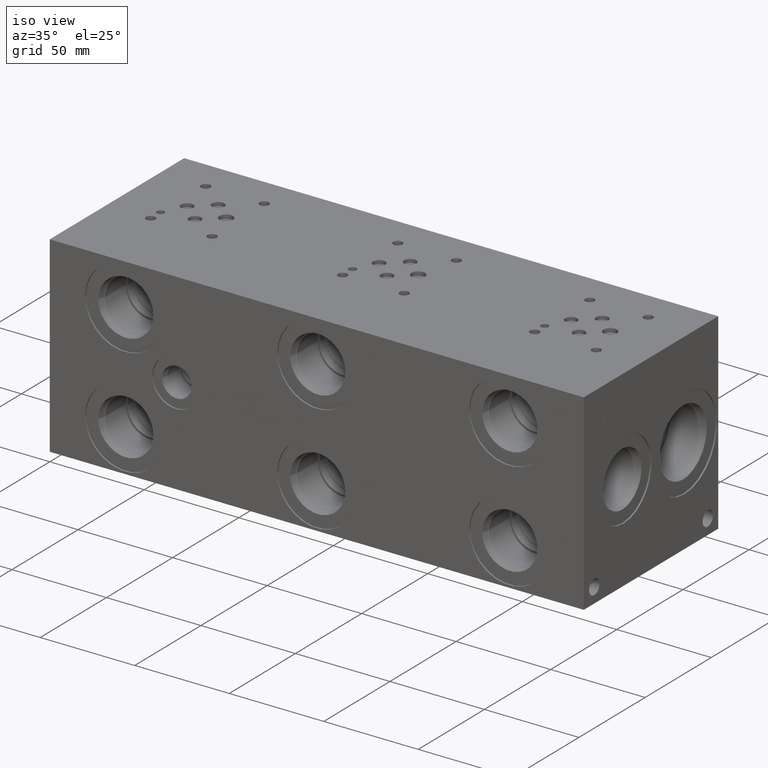
[diagram: clean part render]
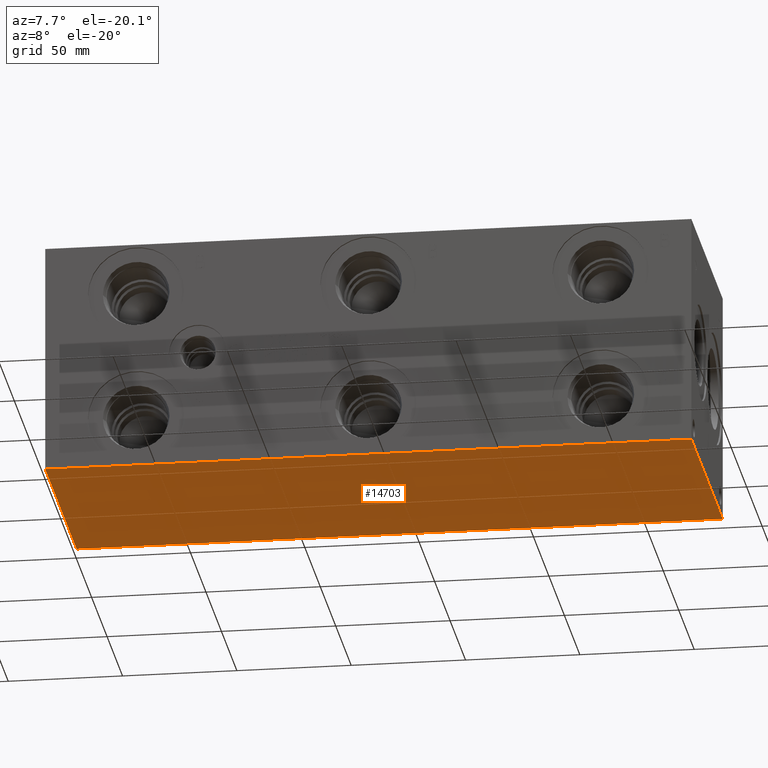
[diagram: tour spotlight — one face highlighted and labeled with its STEP entity id]
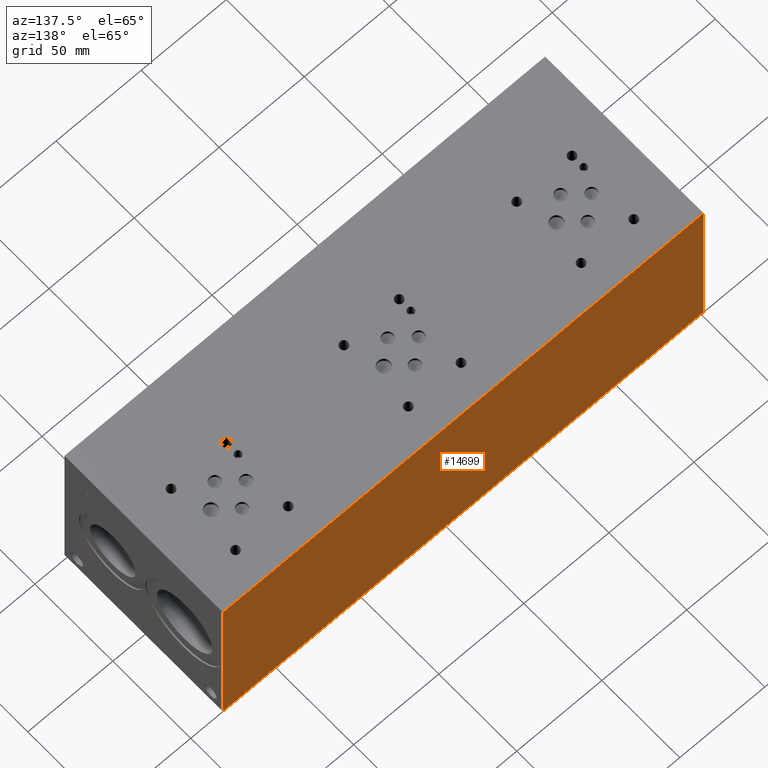
[diagram: tour spotlight — one face highlighted and labeled with its STEP entity id]
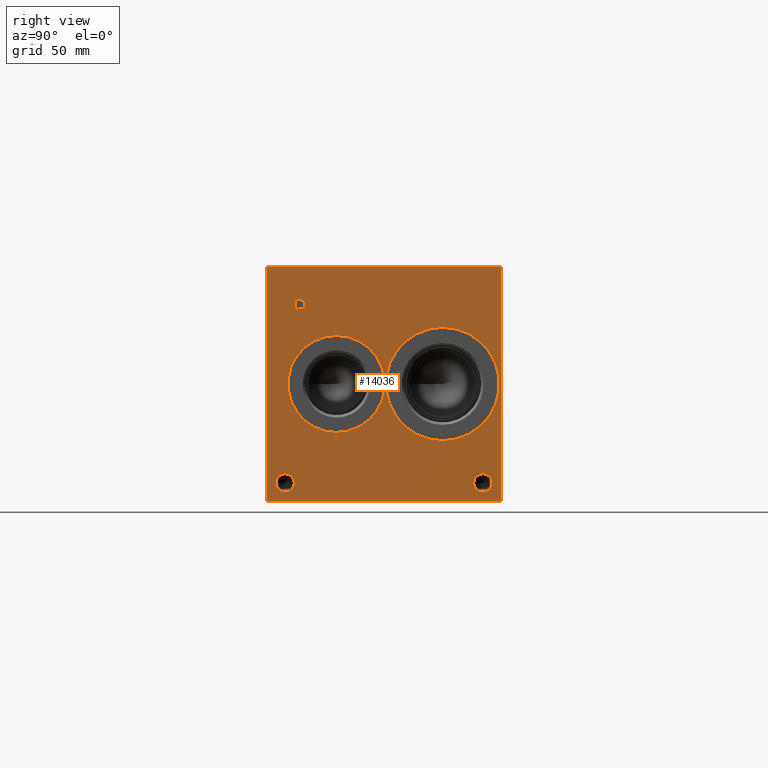
[diagram: tour spotlight — one face highlighted and labeled with its STEP entity id]
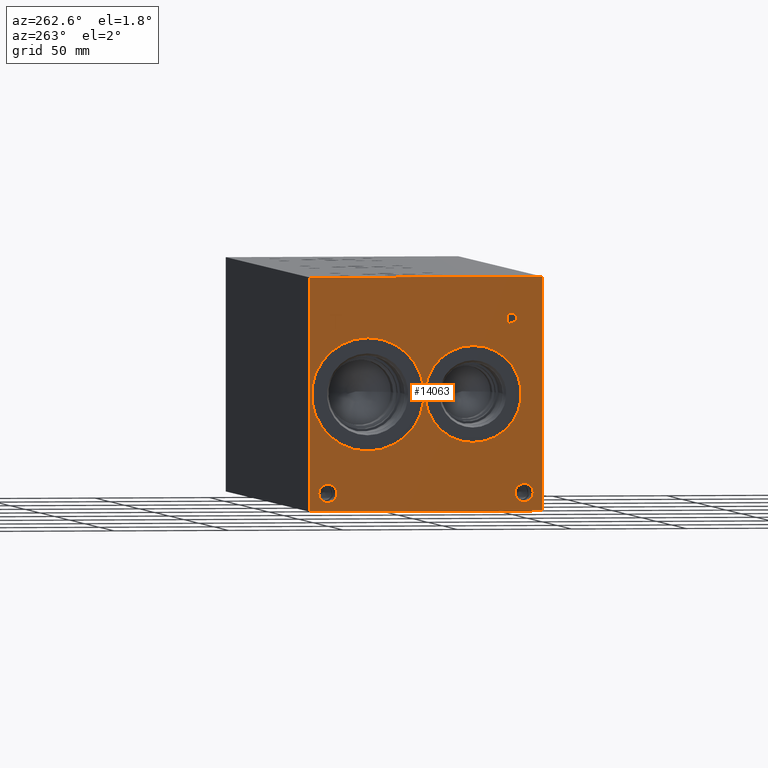
[diagram: tour spotlight — one face highlighted and labeled with its STEP entity id]
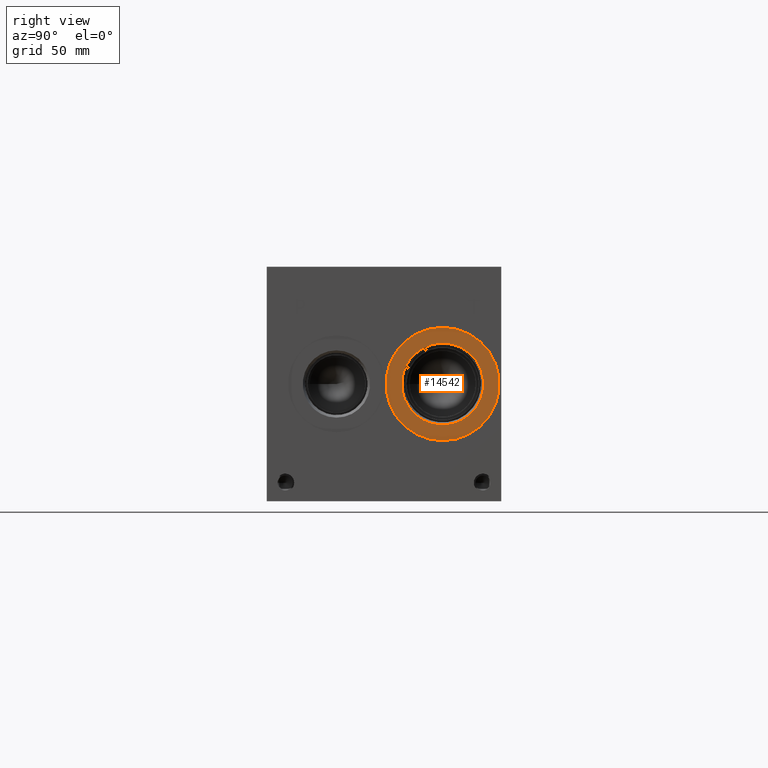
[diagram: tour spotlight — one face highlighted and labeled with its STEP entity id]
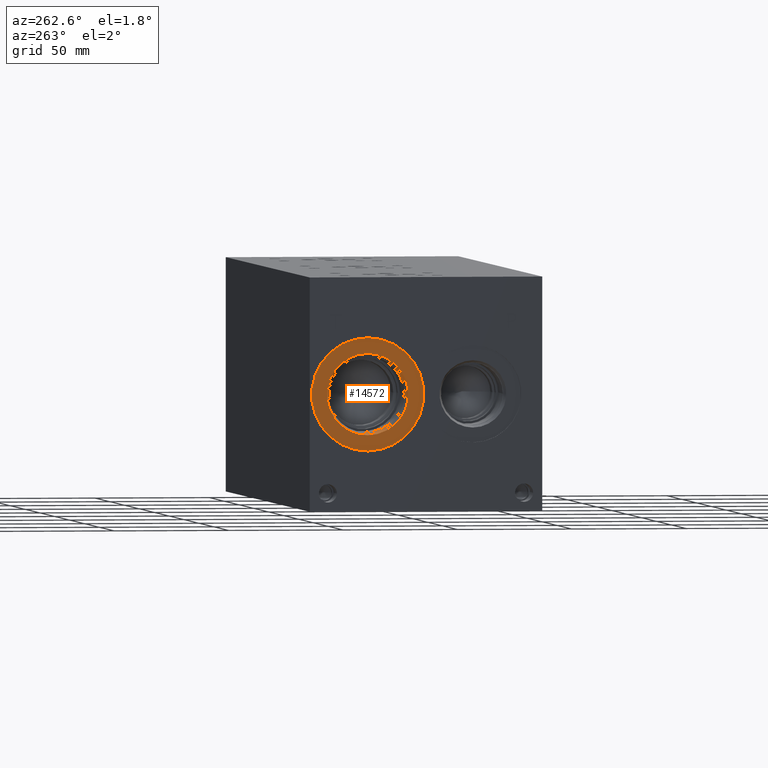
[diagram: tour spotlight — one face highlighted and labeled with its STEP entity id]
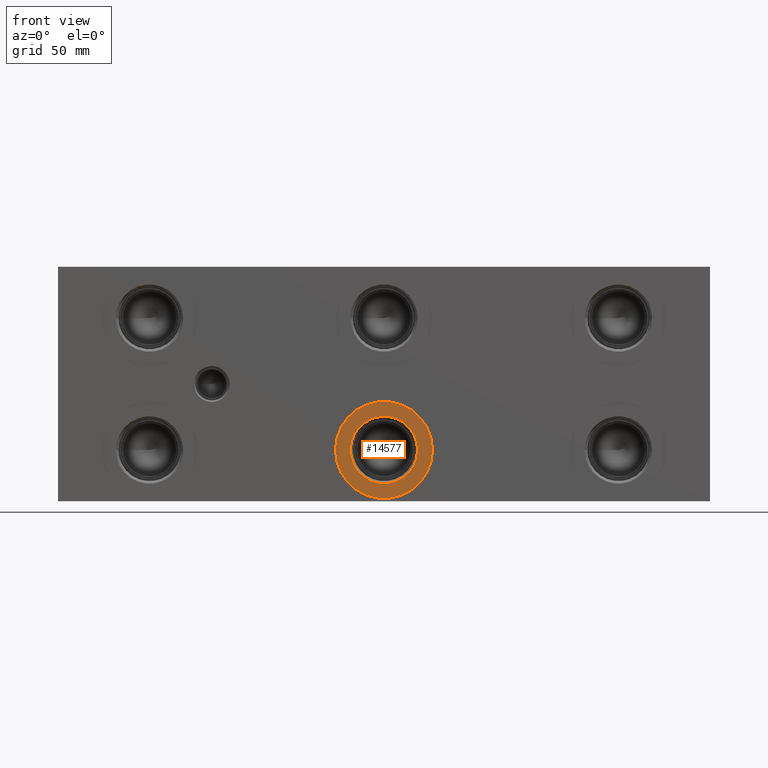
[diagram: tour spotlight — one face highlighted and labeled with its STEP entity id]
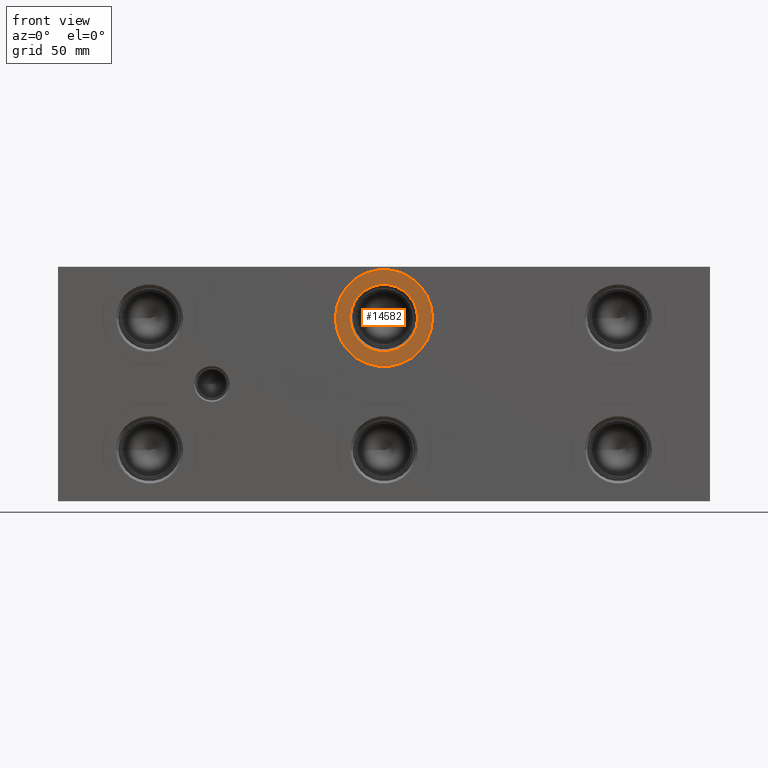
[diagram: tour spotlight — one face highlighted and labeled with its STEP entity id]
A machine part: a face-by-face anatomy tour. The part has 760 B-rep faces; the first image is the clean iso view, then the 8 largest visible faces are spotlighted one at a time (largest first), each with its STEP entity span.

Face 1 — auxiliary view, entity #14703. In plain terms, the highlighted planar face has unit normal (0, 0, 1).
Definition (entity closure, byte-faithful):
#1988=FACE_OUTER_BOUND('',#2879,.T.);
#2879=EDGE_LOOP('',(#13011,#13012,#13013,#13014));
#2913=LINE('',#19009,#4218);
#3268=LINE('',#20796,#4573);
#3327=LINE('',#21068,#4632);
#4183=LINE('',#25404,#5488);
#4218=VECTOR('',#15750,10.);
#4573=VECTOR('',#16221,10.);
#4632=VECTOR('',#16334,10.);
#5488=VECTOR('',#18928,10.);
#5512=VERTEX_POINT('',#19007);
#5513=VERTEX_POINT('',#19008);
#5967=VERTEX_POINT('',#20795);
#6025=VERTEX_POINT('',#21067);
#6934=EDGE_CURVE('',#5512,#5513,#2913,.T.);
#7461=EDGE_CURVE('',#5513,#5967,#3268,.T.);
#7544=EDGE_CURVE('',#6025,#5512,#3327,.T.);
#8937=EDGE_CURVE('',#5967,#6025,#4183,.T.);
#13011=ORIENTED_EDGE('',*,*,#6934,.F.);
#13012=ORIENTED_EDGE('',*,*,#7544,.F.);
#13013=ORIENTED_EDGE('',*,*,#8937,.F.);
#13014=ORIENTED_EDGE('',*,*,#7461,.F.);
#13423=PLANE('',#15688);
#14703=ADVANCED_FACE('',(#1988),#13423,.F.);
#15688=AXIS2_PLACEMENT_3D('',#25409,#18936,#18937);
#15750=DIRECTION('',(1.,0.,0.));
#16221=DIRECTION('',(0.,1.,0.));
#16334=DIRECTION('',(0.,-1.,0.));
#18928=DIRECTION('',(-1.,0.,0.));
#18936=DIRECTION('center_axis',(0.,0.,1.));
#18937=DIRECTION('ref_axis',(1.,0.,0.));
#19007=CARTESIAN_POINT('',(0.,0.,0.));
#19008=CARTESIAN_POINT('',(282.575,0.,0.));
#19009=CARTESIAN_POINT('',(0.,0.,0.));
#20795=CARTESIAN_POINT('',(282.575,101.6,0.));
#20796=CARTESIAN_POINT('',(282.575,0.,0.));
#21067=CARTESIAN_POINT('',(0.,101.6,0.));
#21068=CARTESIAN_POINT('',(0.,101.6,0.));
#25404=CARTESIAN_POINT('',(282.575,101.6,0.));
#25409=CARTESIAN_POINT('Origin',(141.2875,50.8,0.));

Face 2 — auxiliary view, entity #14699. In plain terms, the highlighted planar face has unit normal (0, 1, 0).
Definition (entity closure, byte-faithful):
#1984=FACE_OUTER_BOUND('',#2848,.T.);
#2848=EDGE_LOOP('',(#12935,#12936,#12937,#12938));
#3269=LINE('',#20798,#4574);
#3329=LINE('',#21071,#4634);
#4183=LINE('',#25404,#5488);
#4184=LINE('',#25405,#5489);
#4574=VECTOR('',#16222,10.);
#4634=VECTOR('',#16336,10.);
#5488=VECTOR('',#18928,10.);
#5489=VECTOR('',#18929,10.);
#5967=VERTEX_POINT('',#20795);
#5968=VERTEX_POINT('',#20797);
#6025=VERTEX_POINT('',#21067);
#6026=VERTEX_POINT('',#21069);
#7462=EDGE_CURVE('',#5967,#5968,#3269,.T.);
#7546=EDGE_CURVE('',#6025,#6026,#3329,.T.);
#8937=EDGE_CURVE('',#5967,#6025,#4183,.T.);
#8938=EDGE_CURVE('',#5968,#6026,#4184,.T.);
#12935=ORIENTED_EDGE('',*,*,#8937,.T.);
#12936=ORIENTED_EDGE('',*,*,#7546,.T.);
#12937=ORIENTED_EDGE('',*,*,#8938,.F.);
#12938=ORIENTED_EDGE('',*,*,#7462,.F.);
#13419=PLANE('',#15684);
#14699=ADVANCED_FACE('',(#1984),#13419,.T.);
#15684=AXIS2_PLACEMENT_3D('',#25403,#18926,#18927);
#16222=DIRECTION('',(0.,0.,1.));
#16336=DIRECTION('',(0.,0.,1.));
#18926=DIRECTION('center_axis',(0.,1.,0.));
#18927=DIRECTION('ref_axis',(-1.,0.,0.));
#18928=DIRECTION('',(-1.,0.,0.));
#18929=DIRECTION('',(-1.,0.,0.));
#20795=CARTESIAN_POINT('',(282.575,101.6,0.));
#20797=CARTESIAN_POINT('',(282.575,101.6,101.6));
#20798=CARTESIAN_POINT('',(282.575,101.6,0.));
#21067=CARTESIAN_POINT('',(0.,101.6,0.));
#21069=CARTESIAN_POINT('',(0.,101.6,101.6));
#21071=CARTESIAN_POINT('',(0.,101.6,0.));
#25403=CARTESIAN_POINT('Origin',(282.575,101.6,0.));
#25404=CARTESIAN_POINT('',(282.575,101.6,0.));
#25405=CARTESIAN_POINT('',(282.575,101.6,101.6));

Face 3 — right view, entity #14036. In plain terms, the highlighted planar face has unit normal (1, 0, 0).
Definition (entity closure, byte-faithful):
#379=CIRCLE('',#14789,24.5618);
#380=CIRCLE('',#14790,24.5618);
#381=CIRCLE('',#14791,21.0185);
#382=CIRCLE('',#14792,21.0185);
#383=CIRCLE('',#14793,3.9624);
#384=CIRCLE('',#14794,3.9624);
#385=CIRCLE('',#14795,3.9624);
#386=CIRCLE('',#14796,3.9624);
#900=B_SPLINE_CURVE_WITH_KNOTS('',2,(#20697,#20698,#20699,#20700),
 .UNSPECIFIED.,.F.,.F.,(3,1,3),(0.,1.,2.),.UNSPECIFIED.);
#902=B_SPLINE_CURVE_WITH_KNOTS('',2,(#20718,#20719,#20720,#20721),
 .UNSPECIFIED.,.F.,.F.,(3,1,3),(0.,1.,2.),.UNSPECIFIED.);
#904=B_SPLINE_CURVE_WITH_KNOTS('',2,(#20767,#20768,#20769,#20770),
 .UNSPECIFIED.,.F.,.F.,(3,1,3),(0.,1.,2.),.UNSPECIFIED.);
#906=B_SPLINE_CURVE_WITH_KNOTS('',2,(#20785,#20786,#20787,#20788),
 .UNSPECIFIED.,.F.,.F.,(3,1,3),(0.,1.,2.),.UNSPECIFIED.);
#1137=FACE_BOUND('',#2121,.T.);
#1138=FACE_BOUND('',#2122,.T.);
#1139=FACE_BOUND('',#2123,.T.);
#1140=FACE_BOUND('',#2124,.T.);
#1141=FACE_BOUND('',#2125,.T.);
#1142=FACE_BOUND('',#2126,.T.);
#1321=FACE_OUTER_BOUND('',#2120,.T.);
#2120=EDGE_LOOP('',(#9729,#9730,#9731,#9732));
#2121=EDGE_LOOP('',(#9733,#9734));
#2122=EDGE_LOOP('',(#9735,#9736));
#2123=EDGE_LOOP('',(#9737,#9738));
#2124=EDGE_LOOP('',(#9739,#9740));
#2125=EDGE_LOOP('',(#9741,#9742,#9743,#9744,#9745,#9746,#9747,#9748));
#2126=EDGE_LOOP('',(#9749,#9750,#9751,#9752,#9753,#9754,#9755,#9756,#9757));
#2914=LINE('',#19011,#4219);
#3252=LINE('',#20730,#4557);
#3255=LINE('',#20736,#4560);
#3258=LINE('',#20742,#4563);
#3261=LINE('',#20748,#4566);
#3264=LINE('',#20754,#4569);
#3268=LINE('',#20796,#4573);
#3269=LINE('',#20798,#4574);
#3270=LINE('',#20799,#4575);
#3271=LINE('',#20818,#4576);
#3272=LINE('',#20820,#4577);
#3273=LINE('',#20822,#4578);
#3274=LINE('',#20824,#4579);
#3275=LINE('',#20826,#4580);
#3276=LINE('',#20828,#4581);
#3277=LINE('',#20830,#4582);
#3278=LINE('',#20831,#4583);
#4219=VECTOR('',#15751,10.);
#4557=VECTOR('',#16193,10.);
#4560=VECTOR('',#16198,10.);
#4563=VECTOR('',#16203,10.);
#4566=VECTOR('',#16208,10.);
#4569=VECTOR('',#16213,10.);
#4573=VECTOR('',#16221,10.);
#4574=VECTOR('',#16222,10.);
#4575=VECTOR('',#16223,10.);
#4576=VECTOR('',#16240,10.);
#4577=VECTOR('',#16241,10.);
#4578=VECTOR('',#16242,10.);
#4579=VECTOR('',#16243,10.);
#4580=VECTOR('',#16244,10.);
#4581=VECTOR('',#16245,10.);
#4582=VECTOR('',#16246,10.);
#4583=VECTOR('',#16247,10.);
#5513=VERTEX_POINT('',#19008);
#5514=VERTEX_POINT('',#19010);
#5949=VERTEX_POINT('',#20695);
#5950=VERTEX_POINT('',#20696);
#5953=VERTEX_POINT('',#20717);
#5955=VERTEX_POINT('',#20729);
#5957=VERTEX_POINT('',#20735);
#5959=VERTEX_POINT('',#20741);
#5961=VERTEX_POINT('',#20747);
#5963=VERTEX_POINT('',#20753);
#5965=VERTEX_POINT('',#20766);
#5967=VERTEX_POINT('',#20795);
#5968=VERTEX_POINT('',#20797);
#5969=VERTEX_POINT('',#20800);
#5970=VERTEX_POINT('',#20801);
#5971=VERTEX_POINT('',#20804);
#5972=VERTEX_POINT('',#20805);
#5973=VERTEX_POINT('',#20808);
#5974=VERTEX_POINT('',#20809);
#5975=VERTEX_POINT('',#20812);
#5976=VERTEX_POINT('',#20813);
#5977=VERTEX_POINT('',#20816);
#5978=VERTEX_POINT('',#20817);
#5979=VERTEX_POINT('',#20819);
#5980=VERTEX_POINT('',#20821);
#5981=VERTEX_POINT('',#20823);
#5982=VERTEX_POINT('',#20825);
#5983=VERTEX_POINT('',#20827);
#5984=VERTEX_POINT('',#20829);
#6935=EDGE_CURVE('',#5513,#5514,#2914,.T.);
#7434=EDGE_CURVE('',#5949,#5950,#900,.T.);
#7438=EDGE_CURVE('',#5953,#5949,#902,.T.);
#7441=EDGE_CURVE('',#5955,#5953,#3252,.T.);
#7444=EDGE_CURVE('',#5957,#5955,#3255,.T.);
#7447=EDGE_CURVE('',#5959,#5957,#3258,.T.);
#7450=EDGE_CURVE('',#5961,#5959,#3261,.T.);
#7453=EDGE_CURVE('',#5963,#5961,#3264,.T.);
#7456=EDGE_CURVE('',#5965,#5963,#904,.T.);
#7459=EDGE_CURVE('',#5950,#5965,#906,.T.);
#7461=EDGE_CURVE('',#5513,#5967,#3268,.T.);
#7462=EDGE_CURVE('',#5967,#5968,#3269,.T.);
#7463=EDGE_CURVE('',#5514,#5968,#3270,.T.);
#7464=EDGE_CURVE('',#5969,#5970,#379,.T.);
#7465=EDGE_CURVE('',#5970,#5969,#380,.T.);
#7466=EDGE_CURVE('',#5971,#5972,#381,.T.);
#7467=EDGE_CURVE('',#5972,#5971,#382,.T.);
#7468=EDGE_CURVE('',#5973,#5974,#383,.T.);
#7469=EDGE_CURVE('',#5974,#5973,#384,.T.);
#7470=EDGE_CURVE('',#5975,#5976,#385,.T.);
#7471=EDGE_CURVE('',#5976,#5975,#386,.T.);
#7472=EDGE_CURVE('',#5977,#5978,#3271,.T.);
#7473=EDGE_CURVE('',#5978,#5979,#3272,.T.);
#7474=EDGE_CURVE('',#5979,#5980,#3273,.T.);
#7475=EDGE_CURVE('',#5980,#5981,#3274,.T.);
#7476=EDGE_CURVE('',#5981,#5982,#3275,.T.);
#7477=EDGE_CURVE('',#5982,#5983,#3276,.T.);
#7478=EDGE_CURVE('',#5983,#5984,#3277,.T.);
#7479=EDGE_CURVE('',#5984,#5977,#3278,.T.);
#9729=ORIENTED_EDGE('',*,*,#7461,.T.);
#9730=ORIENTED_EDGE('',*,*,#7462,.T.);
#9731=ORIENTED_EDGE('',*,*,#7463,.F.);
#9732=ORIENTED_EDGE('',*,*,#6935,.F.);
#9733=ORIENTED_EDGE('',*,*,#7464,.T.);
#9734=ORIENTED_EDGE('',*,*,#7465,.T.);
#9735=ORIENTED_EDGE('',*,*,#7466,.T.);
#9736=ORIENTED_EDGE('',*,*,#7467,.T.);
#9737=ORIENTED_EDGE('',*,*,#7468,.T.);
#9738=ORIENTED_EDGE('',*,*,#7469,.T.);
#9739=ORIENTED_EDGE('',*,*,#7470,.T.);
#9740=ORIENTED_EDGE('',*,*,#7471,.T.);
#9741=ORIENTED_EDGE('',*,*,#7472,.T.);
#9742=ORIENTED_EDGE('',*,*,#7473,.T.);
#9743=ORIENTED_EDGE('',*,*,#7474,.T.);
#9744=ORIENTED_EDGE('',*,*,#7475,.T.);
#9745=ORIENTED_EDGE('',*,*,#7476,.T.);
#9746=ORIENTED_EDGE('',*,*,#7477,.T.);
#9747=ORIENTED_EDGE('',*,*,#7478,.T.);
#9748=ORIENTED_EDGE('',*,*,#7479,.T.);
#9749=ORIENTED_EDGE('',*,*,#7434,.T.);
#9750=ORIENTED_EDGE('',*,*,#7459,.T.);
#9751=ORIENTED_EDGE('',*,*,#7456,.T.);
#9752=ORIENTED_EDGE('',*,*,#7453,.T.);
#9753=ORIENTED_EDGE('',*,*,#7450,.T.);
#9754=ORIENTED_EDGE('',*,*,#7447,.T.);
#9755=ORIENTED_EDGE('',*,*,#7444,.T.);
#9756=ORIENTED_EDGE('',*,*,#7441,.T.);
#9757=ORIENTED_EDGE('',*,*,#7438,.T.);
#13071=PLANE('',#14788);
#14036=ADVANCED_FACE('',(#1321,#1137,#1138,#1139,#1140,#1141,#1142),#13071,
 .T.);
#14788=AXIS2_PLACEMENT_3D('',#20794,#16219,#16220);
#14789=AXIS2_PLACEMENT_3D('',#20802,#16224,#16225);
#14790=AXIS2_PLACEMENT_3D('',#20803,#16226,#16227);
#14791=AXIS2_PLACEMENT_3D('',#20806,#16228,#16229);
#14792=AXIS2_PLACEMENT_3D('',#20807,#16230,#16231);
#14793=AXIS2_PLACEMENT_3D('',#20810,#16232,#16233);
#14794=AXIS2_PLACEMENT_3D('',#20811,#16234,#16235);
#14795=AXIS2_PLACEMENT_3D('',#20814,#16236,#16237);
#14796=AXIS2_PLACEMENT_3D('',#20815,#16238,#16239);
#15751=DIRECTION('',(0.,0.,1.));
#16193=DIRECTION('',(0.,1.,0.));
#16198=DIRECTION('',(0.,0.,1.));
#16203=DIRECTION('',(0.,-1.,0.));
#16208=DIRECTION('',(0.,0.,-1.));
#16213=DIRECTION('',(0.,-1.,0.));
#16219=DIRECTION('center_axis',(1.,0.,0.));
#16220=DIRECTION('ref_axis',(0.,1.,0.));
#16221=DIRECTION('',(0.,1.,0.));
#16222=DIRECTION('',(0.,0.,1.));
#16223=DIRECTION('',(0.,1.,0.));
#16224=DIRECTION('center_axis',(-1.,0.,0.));
#16225=DIRECTION('ref_axis',(0.,0.,-1.));
#16226=DIRECTION('center_axis',(-1.,0.,0.));
#16227=DIRECTION('ref_axis',(0.,0.,-1.));
#16228=DIRECTION('center_axis',(-1.,0.,0.));
#16229=DIRECTION('ref_axis',(0.,0.,-1.));
#16230=DIRECTION('center_axis',(-1.,0.,0.));
#16231=DIRECTION('ref_axis',(0.,0.,-1.));
#16232=DIRECTION('center_axis',(-1.,0.,0.));
#16233=DIRECTION('ref_axis',(0.,1.,0.));
#16234=DIRECTION('center_axis',(-1.,0.,0.));
#16235=DIRECTION('ref_axis',(0.,1.,0.));
#16236=DIRECTION('center_axis',(-1.,0.,0.));
#16237=DIRECTION('ref_axis',(0.,1.,0.));
#16238=DIRECTION('center_axis',(-1.,0.,0.));
#16239=DIRECTION('ref_axis',(0.,1.,0.));
#16240=DIRECTION('',(0.,-1.,0.));
#16241=DIRECTION('',(0.,0.,1.));
#16242=DIRECTION('',(0.,-1.,0.));
#16243=DIRECTION('',(0.,0.,1.));
#16244=DIRECTION('',(0.,1.,0.));
#16245=DIRECTION('',(0.,0.,-1.));
#16246=DIRECTION('',(0.,-1.,0.));
#16247=DIRECTION('',(0.,0.,-1.));
#19008=CARTESIAN_POINT('',(282.575,0.,0.));
#19010=CARTESIAN_POINT('',(282.575,0.,101.6));
#19011=CARTESIAN_POINT('',(282.575,0.,0.));
#20695=CARTESIAN_POINT('',(282.575,15.8068172023594,86.9162681439707));
#20696=CARTESIAN_POINT('',(282.575,16.563259654532,85.398237372604));
#20697=CARTESIAN_POINT('Ctrl Pts',(282.575,15.8068172023594,86.9162681439707));
#20698=CARTESIAN_POINT('Ctrl Pts',(282.575,16.1618820268486,86.6744123939564));
#20699=CARTESIAN_POINT('Ctrl Pts',(282.575,16.563259654532,85.9282616758269));
#20700=CARTESIAN_POINT('Ctrl Pts',(282.575,16.563259654532,85.398237372604));
#20717=CARTESIAN_POINT('',(282.575,14.1447021543883,87.3124999046326));
#20718=CARTESIAN_POINT('Ctrl Pts',(282.575,14.1447021543883,87.3124999046326));
#20719=CARTESIAN_POINT('Ctrl Pts',(282.575,14.7107475267624,87.3124999046326));
#20720=CARTESIAN_POINT('Ctrl Pts',(282.575,15.503211048086,87.1272486918556));
#20721=CARTESIAN_POINT('Ctrl Pts',(282.575,15.8068172023594,86.9162681439707));
#20729=CARTESIAN_POINT('',(282.575,12.5494833776978,87.3124999046326));
#20730=CARTESIAN_POINT('',(282.575,6.27474168884889,87.3124999046326));
#20735=CARTESIAN_POINT('',(282.575,12.5494833776978,80.9625));
#20736=CARTESIAN_POINT('',(282.575,12.5494833776978,40.48125));
#20741=CARTESIAN_POINT('',(282.575,13.3934055692373,80.9625));
#20742=CARTESIAN_POINT('',(282.575,6.69670278461864,80.9625));
#20747=CARTESIAN_POINT('',(282.575,13.3934055692373,83.3295988299279));
#20748=CARTESIAN_POINT('',(282.575,13.3934055692373,41.6647994149639));
#20753=CARTESIAN_POINT('',(282.575,14.1086810852372,83.3295988299279));
#20754=CARTESIAN_POINT('',(282.575,7.05434054261861,83.3295988299279));
#20766=CARTESIAN_POINT('',(282.575,16.0075060162011,83.9882698086904));
#20767=CARTESIAN_POINT('Ctrl Pts',(282.575,16.0075060162011,83.9882698086904));
#20768=CARTESIAN_POINT('Ctrl Pts',(282.575,15.6781705268198,83.6640801863307));
#20769=CARTESIAN_POINT('Ctrl Pts',(282.575,14.7879355320861,83.3295988299279));
#20770=CARTESIAN_POINT('Ctrl Pts',(282.575,14.1086810852372,83.3295988299279));
#20785=CARTESIAN_POINT('Ctrl Pts',(282.575,16.563259654532,85.398237372604));
#20786=CARTESIAN_POINT('Ctrl Pts',(282.575,16.563259654532,84.9865680108774));
#20787=CARTESIAN_POINT('Ctrl Pts',(282.575,16.2699452343018,84.2455631597695));
#20788=CARTESIAN_POINT('Ctrl Pts',(282.575,16.0075060162011,83.9882698086904));
#20794=CARTESIAN_POINT('Origin',(282.575,0.,0.));
#20795=CARTESIAN_POINT('',(282.575,101.6,0.));
#20796=CARTESIAN_POINT('',(282.575,0.,0.));
#20797=CARTESIAN_POINT('',(282.575,101.6,101.6));
#20798=CARTESIAN_POINT('',(282.575,101.6,0.));
#20799=CARTESIAN_POINT('',(282.575,0.,101.6));
#20800=CARTESIAN_POINT('',(282.575,76.2,26.2382));
#20801=CARTESIAN_POINT('',(282.575,76.2,75.3618));
#20802=CARTESIAN_POINT('Origin',(282.575,76.2,50.8));
#20803=CARTESIAN_POINT('Origin',(282.575,76.2,50.8));
#20804=CARTESIAN_POINT('',(282.575,30.1752,29.7815));
#20805=CARTESIAN_POINT('',(282.575,30.1752,71.8185));
#20806=CARTESIAN_POINT('Origin',(282.575,30.1752,50.8));
#20807=CARTESIAN_POINT('Origin',(282.575,30.1752,50.8));
#20808=CARTESIAN_POINT('',(282.575,11.8872,7.9248));
#20809=CARTESIAN_POINT('',(282.575,3.9624,7.9248));
#20810=CARTESIAN_POINT('Origin',(282.575,7.9248,7.9248));
#20811=CARTESIAN_POINT('Origin',(282.575,7.9248,7.9248));
#20812=CARTESIAN_POINT('',(282.575,97.6376,7.9248));
#20813=CARTESIAN_POINT('',(282.575,89.7128,7.9248));
#20814=CARTESIAN_POINT('Origin',(282.575,93.6752,7.9248));
#20815=CARTESIAN_POINT('Origin',(282.575,93.6752,7.9248));
#20816=CARTESIAN_POINT('',(282.575,90.281665271453,80.9625));
#20817=CARTESIAN_POINT('',(282.575,89.4377430799135,80.9625));
#20818=CARTESIAN_POINT('',(282.575,45.1408326357265,80.9625));
#20819=CARTESIAN_POINT('',(282.575,89.4377430799135,86.5612033194816));
#20820=CARTESIAN_POINT('',(282.575,89.4377430799135,40.48125));
#20821=CARTESIAN_POINT('',(282.575,87.3073541329784,86.5612033194816));
#20822=CARTESIAN_POINT('',(282.575,44.7188715399568,86.5612033194816));
#20823=CARTESIAN_POINT('',(282.575,87.3073541329784,87.3124999046326));
#20824=CARTESIAN_POINT('',(282.575,87.3073541329784,43.2806016597408));
#20825=CARTESIAN_POINT('',(282.575,92.4120542183881,87.3124999046326));
#20826=CARTESIAN_POINT('',(282.575,43.6536770664892,87.3124999046326));
#20827=CARTESIAN_POINT('',(282.575,92.4120542183881,86.5612033194816));
#20828=CARTESIAN_POINT('',(282.575,92.4120542183881,43.6562499523163));
#20829=CARTESIAN_POINT('',(282.575,90.281665271453,86.5612033194816));
#20830=CARTESIAN_POINT('',(282.575,46.206027109194,86.5612033194816));
#20831=CARTESIAN_POINT('',(282.575,90.281665271453,43.2806016597408));

Face 4 — auxiliary view, entity #14063. In plain terms, the highlighted planar face has unit normal (-1, 0, 0).
Definition (entity closure, byte-faithful):
#387=CIRCLE('',#14816,24.5618);
#388=CIRCLE('',#14817,24.5618);
#389=CIRCLE('',#14818,21.0185);
#390=CIRCLE('',#14819,21.0185);
#391=CIRCLE('',#14820,3.9624);
#392=CIRCLE('',#14821,3.9624);
#393=CIRCLE('',#14822,3.9624);
#394=CIRCLE('',#14823,3.9624);
#916=B_SPLINE_CURVE_WITH_KNOTS('',2,(#20969,#20970,#20971,#20972),
 .UNSPECIFIED.,.F.,.F.,(3,1,3),(0.,1.,2.),.UNSPECIFIED.);
#918=B_SPLINE_CURVE_WITH_KNOTS('',2,(#20990,#20991,#20992,#20993),
 .UNSPECIFIED.,.F.,.F.,(3,1,3),(0.,1.,2.),.UNSPECIFIED.);
#920=B_SPLINE_CURVE_WITH_KNOTS('',2,(#21039,#21040,#21041,#21042),
 .UNSPECIFIED.,.F.,.F.,(3,1,3),(0.,1.,2.),.UNSPECIFIED.);
#922=B_SPLINE_CURVE_WITH_KNOTS('',2,(#21057,#21058,#21059,#21060),
 .UNSPECIFIED.,.F.,.F.,(3,1,3),(0.,1.,2.),.UNSPECIFIED.);
#1144=FACE_BOUND('',#2155,.T.);
#1145=FACE_BOUND('',#2156,.T.);
#1146=FACE_BOUND('',#2157,.T.);
#1147=FACE_BOUND('',#2158,.T.);
#1148=FACE_BOUND('',#2159,.T.);
#1149=FACE_BOUND('',#2160,.T.);
#1348=FACE_OUTER_BOUND('',#2154,.T.);
#2154=EDGE_LOOP('',(#9878,#9879,#9880,#9881));
#2155=EDGE_LOOP('',(#9882,#9883));
#2156=EDGE_LOOP('',(#9884,#9885));
#2157=EDGE_LOOP('',(#9886,#9887));
#2158=EDGE_LOOP('',(#9888,#9889));
#2159=EDGE_LOOP('',(#9890,#9891,#9892,#9893,#9894,#9895,#9896,#9897));
#2160=EDGE_LOOP('',(#9898,#9899,#9900,#9901,#9902,#9903,#9904,#9905,#9906));
#2916=LINE('',#19014,#4221);
#3311=LINE('',#21002,#4616);
#3314=LINE('',#21008,#4619);
#3317=LINE('',#21014,#4622);
#3320=LINE('',#21020,#4625);
#3323=LINE('',#21026,#4628);
#3327=LINE('',#21068,#4632);
#3328=LINE('',#21070,#4633);
#3329=LINE('',#21071,#4634);
#3330=LINE('',#21090,#4635);
#3331=LINE('',#21092,#4636);
#3332=LINE('',#21094,#4637);
#3333=LINE('',#21096,#4638);
#3334=LINE('',#21098,#4639);
#3335=LINE('',#21100,#4640);
#3336=LINE('',#21102,#4641);
#3337=LINE('',#21103,#4642);
#4221=VECTOR('',#15753,10.);
#4616=VECTOR('',#16306,10.);
#4619=VECTOR('',#16311,10.);
#4622=VECTOR('',#16316,10.);
#4625=VECTOR('',#16321,10.);
#4628=VECTOR('',#16326,10.);
#4632=VECTOR('',#16334,10.);
#4633=VECTOR('',#16335,10.);
#4634=VECTOR('',#16336,10.);
#4635=VECTOR('',#16353,10.);
#4636=VECTOR('',#16354,10.);
#4637=VECTOR('',#16355,10.);
#4638=VECTOR('',#16356,10.);
#4639=VECTOR('',#16357,10.);
#4640=VECTOR('',#16358,10.);
#4641=VECTOR('',#16359,10.);
#4642=VECTOR('',#16360,10.);
#5512=VERTEX_POINT('',#19007);
#5515=VERTEX_POINT('',#19012);
#6007=VERTEX_POINT('',#20967);
#6008=VERTEX_POINT('',#20968);
#6011=VERTEX_POINT('',#20989);
#6013=VERTEX_POINT('',#21001);
#6015=VERTEX_POINT('',#21007);
#6017=VERTEX_POINT('',#21013);
#6019=VERTEX_POINT('',#21019);
#6021=VERTEX_POINT('',#21025);
#6023=VERTEX_POINT('',#21038);
#6025=VERTEX_POINT('',#21067);
#6026=VERTEX_POINT('',#21069);
#6027=VERTEX_POINT('',#21072);
#6028=VERTEX_POINT('',#21073);
#6029=VERTEX_POINT('',#21076);
#6030=VERTEX_POINT('',#21077);
#6031=VERTEX_POINT('',#21080);
#6032=VERTEX_POINT('',#21081);
#6033=VERTEX_POINT('',#21084);
#6034=VERTEX_POINT('',#21085);
#6035=VERTEX_POINT('',#21088);
#6036=VERTEX_POINT('',#21089);
#6037=VERTEX_POINT('',#21091);
#6038=VERTEX_POINT('',#21093);
#6039=VERTEX_POINT('',#21095);
#6040=VERTEX_POINT('',#21097);
#6041=VERTEX_POINT('',#21099);
#6042=VERTEX_POINT('',#21101);
#6937=EDGE_CURVE('',#5512,#5515,#2916,.T.);
#7517=EDGE_CURVE('',#6007,#6008,#916,.T.);
#7521=EDGE_CURVE('',#6011,#6007,#918,.T.);
#7524=EDGE_CURVE('',#6013,#6011,#3311,.T.);
#7527=EDGE_CURVE('',#6015,#6013,#3314,.T.);
#7530=EDGE_CURVE('',#6017,#6015,#3317,.T.);
#7533=EDGE_CURVE('',#6019,#6017,#3320,.T.);
#7536=EDGE_CURVE('',#6021,#6019,#3323,.T.);
#7539=EDGE_CURVE('',#6023,#6021,#920,.T.);
#7542=EDGE_CURVE('',#6008,#6023,#922,.T.);
#7544=EDGE_CURVE('',#6025,#5512,#3327,.T.);
#7545=EDGE_CURVE('',#6026,#5515,#3328,.T.);
#7546=EDGE_CURVE('',#6025,#6026,#3329,.T.);
#7547=EDGE_CURVE('',#6027,#6028,#387,.T.);
#7548=EDGE_CURVE('',#6028,#6027,#388,.T.);
#7549=EDGE_CURVE('',#6029,#6030,#389,.T.);
#7550=EDGE_CURVE('',#6030,#6029,#390,.T.);
#7551=EDGE_CURVE('',#6031,#6032,#391,.T.);
#7552=EDGE_CURVE('',#6032,#6031,#392,.T.);
#7553=EDGE_CURVE('',#6033,#6034,#393,.T.);
#7554=EDGE_CURVE('',#6034,#6033,#394,.T.);
#7555=EDGE_CURVE('',#6035,#6036,#3330,.T.);
#7556=EDGE_CURVE('',#6036,#6037,#3331,.T.);
#7557=EDGE_CURVE('',#6037,#6038,#3332,.T.);
#7558=EDGE_CURVE('',#6038,#6039,#3333,.T.);
#7559=EDGE_CURVE('',#6039,#6040,#3334,.T.);
#7560=EDGE_CURVE('',#6040,#6041,#3335,.T.);
#7561=EDGE_CURVE('',#6041,#6042,#3336,.T.);
#7562=EDGE_CURVE('',#6042,#6035,#3337,.T.);
#9878=ORIENTED_EDGE('',*,*,#7544,.T.);
#9879=ORIENTED_EDGE('',*,*,#6937,.T.);
#9880=ORIENTED_EDGE('',*,*,#7545,.F.);
#9881=ORIENTED_EDGE('',*,*,#7546,.F.);
#9882=ORIENTED_EDGE('',*,*,#7547,.T.);
#9883=ORIENTED_EDGE('',*,*,#7548,.T.);
#9884=ORIENTED_EDGE('',*,*,#7549,.T.);
#9885=ORIENTED_EDGE('',*,*,#7550,.T.);
#9886=ORIENTED_EDGE('',*,*,#7551,.T.);
#9887=ORIENTED_EDGE('',*,*,#7552,.T.);
#9888=ORIENTED_EDGE('',*,*,#7553,.T.);
#9889=ORIENTED_EDGE('',*,*,#7554,.T.);
#9890=ORIENTED_EDGE('',*,*,#7555,.T.);
#9891=ORIENTED_EDGE('',*,*,#7556,.T.);
#9892=ORIENTED_EDGE('',*,*,#7557,.T.);
#9893=ORIENTED_EDGE('',*,*,#7558,.T.);
#9894=ORIENTED_EDGE('',*,*,#7559,.T.);
#9895=ORIENTED_EDGE('',*,*,#7560,.T.);
#9896=ORIENTED_EDGE('',*,*,#7561,.T.);
#9897=ORIENTED_EDGE('',*,*,#7562,.T.);
#9898=ORIENTED_EDGE('',*,*,#7517,.T.);
#9899=ORIENTED_EDGE('',*,*,#7542,.T.);
#9900=ORIENTED_EDGE('',*,*,#7539,.T.);
#9901=ORIENTED_EDGE('',*,*,#7536,.T.);
#9902=ORIENTED_EDGE('',*,*,#7533,.T.);
#9903=ORIENTED_EDGE('',*,*,#7530,.T.);
#9904=ORIENTED_EDGE('',*,*,#7527,.T.);
#9905=ORIENTED_EDGE('',*,*,#7524,.T.);
#9906=ORIENTED_EDGE('',*,*,#7521,.T.);
#13090=PLANE('',#14815);
#14063=ADVANCED_FACE('',(#1348,#1144,#1145,#1146,#1147,#1148,#1149),#13090,
 .T.);
#14815=AXIS2_PLACEMENT_3D('',#21066,#16332,#16333);
#14816=AXIS2_PLACEMENT_3D('',#21074,#16337,#16338);
#14817=AXIS2_PLACEMENT_3D('',#21075,#16339,#16340);
#14818=AXIS2_PLACEMENT_3D('',#21078,#16341,#16342);
#14819=AXIS2_PLACEMENT_3D('',#21079,#16343,#16344);
#14820=AXIS2_PLACEMENT_3D('',#21082,#16345,#16346);
#14821=AXIS2_PLACEMENT_3D('',#21083,#16347,#16348);
#14822=AXIS2_PLACEMENT_3D('',#21086,#16349,#16350);
#14823=AXIS2_PLACEMENT_3D('',#21087,#16351,#16352);
#15753=DIRECTION('',(0.,0.,1.));
#16306=DIRECTION('',(0.,-1.,0.));
#16311=DIRECTION('',(0.,-3.49676548440641E-15,1.));
#16316=DIRECTION('',(0.,1.,1.0524411238433E-14));
#16321=DIRECTION('',(0.,3.75218139804999E-15,-1.));
#16326=DIRECTION('',(0.,1.,0.));
#16332=DIRECTION('center_axis',(-1.,0.,0.));
#16333=DIRECTION('ref_axis',(0.,-1.,0.));
#16334=DIRECTION('',(0.,-1.,0.));
#16335=DIRECTION('',(0.,-1.,0.));
#16336=DIRECTION('',(0.,0.,1.));
#16337=DIRECTION('center_axis',(1.,0.,0.));
#16338=DIRECTION('ref_axis',(0.,0.,1.));
#16339=DIRECTION('center_axis',(1.,0.,0.));
#16340=DIRECTION('ref_axis',(0.,0.,1.));
#16341=DIRECTION('center_axis',(1.,0.,0.));
#16342=DIRECTION('ref_axis',(0.,0.,1.));
#16343=DIRECTION('center_axis',(1.,0.,0.));
#16344=DIRECTION('ref_axis',(0.,0.,1.));
#16345=DIRECTION('center_axis',(1.,0.,0.));
#16346=DIRECTION('ref_axis',(0.,1.,0.));
#16347=DIRECTION('center_axis',(1.,0.,0.));
#16348=DIRECTION('ref_axis',(0.,1.,0.));
#16349=DIRECTION('center_axis',(1.,0.,0.));
#16350=DIRECTION('ref_axis',(0.,1.,0.));
#16351=DIRECTION('center_axis',(1.,0.,0.));
#16352=DIRECTION('ref_axis',(0.,1.,0.));
#16353=DIRECTION('',(0.,1.,1.0524411238433E-14));
#16354=DIRECTION('',(0.,-3.17280044688052E-15,1.));
#16355=DIRECTION('',(0.,1.,0.));
#16356=DIRECTION('',(0.,0.,1.));
#16357=DIRECTION('',(0.,-1.,-3.47984565141734E-15));
#16358=DIRECTION('',(0.,0.,-1.));
#16359=DIRECTION('',(0.,1.,8.33818088455555E-15));
#16360=DIRECTION('',(0.,3.17280044688051E-15,-1.));
#19007=CARTESIAN_POINT('',(0.,0.,0.));
#19012=CARTESIAN_POINT('',(0.,0.,101.6));
#19014=CARTESIAN_POINT('',(0.,0.,0.));
#20967=CARTESIAN_POINT('',(0.,11.9744327976406,85.3287681439707));
#20968=CARTESIAN_POINT('',(0.,11.217990345468,83.8107373726039));
#20969=CARTESIAN_POINT('Ctrl Pts',(0.,11.9744327976406,85.3287681439707));
#20970=CARTESIAN_POINT('Ctrl Pts',(0.,11.6193679731514,85.0869123939563));
#20971=CARTESIAN_POINT('Ctrl Pts',(0.,11.217990345468,84.3407616758269));
#20972=CARTESIAN_POINT('Ctrl Pts',(0.,11.217990345468,83.8107373726039));
#20989=CARTESIAN_POINT('',(0.,13.6365478456117,85.7249999046326));
#20990=CARTESIAN_POINT('Ctrl Pts',(0.,13.6365478456117,85.7249999046326));
#20991=CARTESIAN_POINT('Ctrl Pts',(0.,13.0705024732376,85.7249999046326));
#20992=CARTESIAN_POINT('Ctrl Pts',(0.,12.2780389519139,85.5397486918556));
#20993=CARTESIAN_POINT('Ctrl Pts',(0.,11.9744327976406,85.3287681439707));
#21001=CARTESIAN_POINT('',(0.,15.2317666223022,85.7249999046326));
#21002=CARTESIAN_POINT('',(0.,58.4158833111511,85.7249999046326));
#21007=CARTESIAN_POINT('',(0.,15.2317666223022,79.375));
#21008=CARTESIAN_POINT('',(0.,15.2317666223023,39.6874999999999));
#21013=CARTESIAN_POINT('',(0.,14.3878444307627,79.375));
#21014=CARTESIAN_POINT('',(0.,57.9939222153809,79.3750000000004));
#21019=CARTESIAN_POINT('',(0.,14.3878444307627,81.7420988299279));
#21020=CARTESIAN_POINT('',(0.,14.3878444307629,40.8710494149638));
#21025=CARTESIAN_POINT('',(0.,13.6725689147628,81.7420988299279));
#21026=CARTESIAN_POINT('',(0.,57.6362844573814,81.7420988299279));
#21038=CARTESIAN_POINT('',(0.,11.7737439837989,82.4007698086904));
#21039=CARTESIAN_POINT('Ctrl Pts',(0.,11.7737439837989,82.4007698086904));
#21040=CARTESIAN_POINT('Ctrl Pts',(0.,12.1030794731802,82.0765801863307));
#21041=CARTESIAN_POINT('Ctrl Pts',(0.,12.9933144679139,81.7420988299278));
#21042=CARTESIAN_POINT('Ctrl Pts',(0.,13.6725689147628,81.7420988299279));
#21057=CARTESIAN_POINT('Ctrl Pts',(0.,11.217990345468,83.8107373726039));
#21058=CARTESIAN_POINT('Ctrl Pts',(0.,11.217990345468,83.3990680108774));
#21059=CARTESIAN_POINT('Ctrl Pts',(0.,11.5113047656982,82.6580631597695));
#21060=CARTESIAN_POINT('Ctrl Pts',(0.,11.7737439837989,82.4007698086904));
#21066=CARTESIAN_POINT('Origin',(0.,101.6,0.));
#21067=CARTESIAN_POINT('',(0.,101.6,0.));
#21068=CARTESIAN_POINT('',(0.,101.6,0.));
#21069=CARTESIAN_POINT('',(0.,101.6,101.6));
#21070=CARTESIAN_POINT('',(0.,101.6,101.6));
#21071=CARTESIAN_POINT('',(0.,101.6,0.));
#21072=CARTESIAN_POINT('',(0.,76.2,75.3618));
#21073=CARTESIAN_POINT('',(6.93889390390723E-17,76.2,26.2382));
#21074=CARTESIAN_POINT('Origin',(0.,76.2,50.8));
#21075=CARTESIAN_POINT('Origin',(0.,76.2,50.8));
#21076=CARTESIAN_POINT('',(0.,30.1752,71.8185));
#21077=CARTESIAN_POINT('',(0.,30.1752,29.7815));
#21078=CARTESIAN_POINT('Origin',(0.,30.1752,50.8));
#21079=CARTESIAN_POINT('Origin',(0.,30.1752,50.8));
#21080=CARTESIAN_POINT('',(0.,97.6376,7.92480000000001));
#21081=CARTESIAN_POINT('',(0.,89.7128,7.92480000000001));
#21082=CARTESIAN_POINT('Origin',(0.,93.6752,7.92480000000001));
#21083=CARTESIAN_POINT('Origin',(0.,93.6752,7.92480000000001));
#21084=CARTESIAN_POINT('',(0.,11.8872,7.92480000000001));
#21085=CARTESIAN_POINT('',(0.,3.9624,7.92480000000001));
#21086=CARTESIAN_POINT('Origin',(0.,7.9248,7.92480000000001));
#21087=CARTESIAN_POINT('Origin',(0.,7.9248,7.92480000000001));
#21088=CARTESIAN_POINT('',(0.,89.899584728547,79.375));
#21089=CARTESIAN_POINT('',(0.,90.7435069200865,79.375));
#21090=CARTESIAN_POINT('',(0.,95.7497923642731,79.375));
#21091=CARTESIAN_POINT('',(0.,90.7435069200865,84.9737033194815));
#21092=CARTESIAN_POINT('',(0.,90.7435069200866,39.6875));
#21093=CARTESIAN_POINT('',(0.,92.8738958670216,84.9737033194815));
#21094=CARTESIAN_POINT('',(0.,96.1717534600432,84.9737033194815));
#21095=CARTESIAN_POINT('',(0.,92.8738958670216,85.7249999046326));
#21096=CARTESIAN_POINT('',(0.,92.8738958670216,42.4868516597408));
#21097=CARTESIAN_POINT('',(0.,87.7691957816119,85.7249999046326));
#21098=CARTESIAN_POINT('',(0.,97.2369479335106,85.7249999046326));
#21099=CARTESIAN_POINT('',(0.,87.7691957816119,84.9737033194815));
#21100=CARTESIAN_POINT('',(0.,87.7691957816119,42.8624999523163));
#21101=CARTESIAN_POINT('',(0.,89.899584728547,84.9737033194815));
#21102=CARTESIAN_POINT('',(0.,94.6845978908056,84.9737033194816));
#21103=CARTESIAN_POINT('',(0.,89.8995847285471,42.4868516597408));

Face 5 — right view, entity #14542. In plain terms, the highlighted planar face has unit normal (-1, 0, 0).
Definition (entity closure, byte-faithful):
#484=CIRCLE('',#15261,24.5618);
#485=CIRCLE('',#15262,24.5618);
#486=CIRCLE('',#15264,17.7546);
#487=CIRCLE('',#15265,17.7546);
#1175=FACE_BOUND('',#2665,.T.);
#1827=FACE_OUTER_BOUND('',#2664,.T.);
#2664=EDGE_LOOP('',(#12176,#12177));
#2665=EDGE_LOOP('',(#12178,#12179));
#6600=VERTEX_POINT('',#24549);
#6601=VERTEX_POINT('',#24551);
#6602=VERTEX_POINT('',#24555);
#6603=VERTEX_POINT('',#24556);
#8542=EDGE_CURVE('',#6600,#6601,#484,.T.);
#8543=EDGE_CURVE('',#6601,#6600,#485,.T.);
#8544=EDGE_CURVE('',#6602,#6603,#486,.T.);
#8545=EDGE_CURVE('',#6603,#6602,#487,.T.);
#12176=ORIENTED_EDGE('',*,*,#8543,.F.);
#12177=ORIENTED_EDGE('',*,*,#8542,.F.);
#12178=ORIENTED_EDGE('',*,*,#8544,.T.);
#12179=ORIENTED_EDGE('',*,*,#8545,.T.);
#13391=PLANE('',#15263);
#14542=ADVANCED_FACE('',(#1827,#1175),#13391,.F.);
#15261=AXIS2_PLACEMENT_3D('',#24552,#17951,#17952);
#15262=AXIS2_PLACEMENT_3D('',#24553,#17953,#17954);
#15263=AXIS2_PLACEMENT_3D('',#24554,#17955,#17956);
#15264=AXIS2_PLACEMENT_3D('',#24557,#17957,#17958);
#15265=AXIS2_PLACEMENT_3D('',#24558,#17959,#17960);
#17951=DIRECTION('center_axis',(-1.,0.,0.));
#17952=DIRECTION('ref_axis',(0.,0.,1.));
#17953=DIRECTION('center_axis',(-1.,0.,0.));
#17954=DIRECTION('ref_axis',(0.,0.,1.));
#17955=DIRECTION('center_axis',(-1.,0.,0.));
#17956=DIRECTION('ref_axis',(0.,0.,1.));
#17957=DIRECTION('center_axis',(-1.,0.,0.));
#17958=DIRECTION('ref_axis',(0.,0.,1.));
#17959=DIRECTION('center_axis',(-1.,0.,0.));
#17960=DIRECTION('ref_axis',(0.,0.,1.));
#24549=CARTESIAN_POINT('',(281.7876,76.2,75.3618));
#24551=CARTESIAN_POINT('',(281.7876,76.2,26.2382));
#24552=CARTESIAN_POINT('Origin',(281.7876,76.2,50.8));
#24553=CARTESIAN_POINT('Origin',(281.7876,76.2,50.8));
#24554=CARTESIAN_POINT('Origin',(281.7876,76.2,33.0454));
#24555=CARTESIAN_POINT('',(281.7876,76.2,33.0454));
#24556=CARTESIAN_POINT('',(281.7876,76.2,68.5546));
#24557=CARTESIAN_POINT('Origin',(281.7876,76.2,50.8));
#24558=CARTESIAN_POINT('Origin',(281.7876,76.2,50.8));

Face 6 — auxiliary view, entity #14572. In plain terms, the highlighted planar face has unit normal (1, 0, 0).
Definition (entity closure, byte-faithful):
#530=CIRCLE('',#15337,24.5618);
#531=CIRCLE('',#15338,24.5618);
#532=CIRCLE('',#15340,17.7546);
#533=CIRCLE('',#15341,17.7546);
#1181=FACE_BOUND('',#2701,.T.);
#1857=FACE_OUTER_BOUND('',#2700,.T.);
#2700=EDGE_LOOP('',(#12324,#12325));
#2701=EDGE_LOOP('',(#12326,#12327));
#6650=VERTEX_POINT('',#24699);
#6651=VERTEX_POINT('',#24701);
#6652=VERTEX_POINT('',#24705);
#6653=VERTEX_POINT('',#24706);
#8612=EDGE_CURVE('',#6650,#6651,#530,.T.);
#8613=EDGE_CURVE('',#6651,#6650,#531,.T.);
#8614=EDGE_CURVE('',#6652,#6653,#532,.T.);
#8615=EDGE_CURVE('',#6653,#6652,#533,.T.);
#12324=ORIENTED_EDGE('',*,*,#8613,.F.);
#12325=ORIENTED_EDGE('',*,*,#8612,.F.);
#12326=ORIENTED_EDGE('',*,*,#8614,.T.);
#12327=ORIENTED_EDGE('',*,*,#8615,.T.);
#13397=PLANE('',#15339);
#14572=ADVANCED_FACE('',(#1857,#1181),#13397,.F.);
#15337=AXIS2_PLACEMENT_3D('',#24702,#18127,#18128);
#15338=AXIS2_PLACEMENT_3D('',#24703,#18129,#18130);
#15339=AXIS2_PLACEMENT_3D('',#24704,#18131,#18132);
#15340=AXIS2_PLACEMENT_3D('',#24707,#18133,#18134);
#15341=AXIS2_PLACEMENT_3D('',#24708,#18135,#18136);
#18127=DIRECTION('center_axis',(1.,0.,0.));
#18128=DIRECTION('ref_axis',(0.,0.,-1.));
#18129=DIRECTION('center_axis',(1.,0.,0.));
#18130=DIRECTION('ref_axis',(0.,0.,-1.));
#18131=DIRECTION('center_axis',(1.,0.,0.));
#18132=DIRECTION('ref_axis',(0.,0.,-1.));
#18133=DIRECTION('center_axis',(1.,0.,0.));
#18134=DIRECTION('ref_axis',(0.,0.,-1.));
#18135=DIRECTION('center_axis',(1.,0.,0.));
#18136=DIRECTION('ref_axis',(0.,0.,-1.));
#24699=CARTESIAN_POINT('',(0.7874,76.2,26.2382));
#24701=CARTESIAN_POINT('',(0.7874,76.2,75.3618));
#24702=CARTESIAN_POINT('Origin',(0.7874,76.2,50.8));
#24703=CARTESIAN_POINT('Origin',(0.7874,76.2,50.8));
#24704=CARTESIAN_POINT('Origin',(0.7874,76.2,68.5546));
#24705=CARTESIAN_POINT('',(0.7874,76.2,68.5546));
#24706=CARTESIAN_POINT('',(0.787400000000001,76.2,33.0454));
#24707=CARTESIAN_POINT('Origin',(0.7874,76.2,50.8));
#24708=CARTESIAN_POINT('Origin',(0.7874,76.2,50.8));

Face 7 — front view, entity #14577. In plain terms, the highlighted planar face has unit normal (0, 1, 0).
Definition (entity closure, byte-faithful):
#538=CIRCLE('',#15350,21.0185);
#539=CIRCLE('',#15351,21.0185);
#540=CIRCLE('',#15353,14.5923);
#541=CIRCLE('',#15354,14.5923);
#1182=FACE_BOUND('',#2707,.T.);
#1862=FACE_OUTER_BOUND('',#2706,.T.);
#2706=EDGE_LOOP('',(#12352,#12353));
#2707=EDGE_LOOP('',(#12354,#12355));
#6658=VERTEX_POINT('',#24724);
#6659=VERTEX_POINT('',#24726);
#6660=VERTEX_POINT('',#24730);
#6661=VERTEX_POINT('',#24731);
#8624=EDGE_CURVE('',#6658,#6659,#538,.T.);
#8625=EDGE_CURVE('',#6659,#6658,#539,.T.);
#8626=EDGE_CURVE('',#6660,#6661,#540,.T.);
#8627=EDGE_CURVE('',#6661,#6660,#541,.T.);
#12352=ORIENTED_EDGE('',*,*,#8625,.F.);
#12353=ORIENTED_EDGE('',*,*,#8624,.F.);
#12354=ORIENTED_EDGE('',*,*,#8626,.T.);
#12355=ORIENTED_EDGE('',*,*,#8627,.T.);
#13398=PLANE('',#15352);
#14577=ADVANCED_FACE('',(#1862,#1182),#13398,.F.);
#15350=AXIS2_PLACEMENT_3D('',#24727,#18157,#18158);
#15351=AXIS2_PLACEMENT_3D('',#24728,#18159,#18160);
#15352=AXIS2_PLACEMENT_3D('',#24729,#18161,#18162);
#15353=AXIS2_PLACEMENT_3D('',#24732,#18163,#18164);
#15354=AXIS2_PLACEMENT_3D('',#24733,#18165,#18166);
#18157=DIRECTION('center_axis',(0.,1.,0.));
#18158=DIRECTION('ref_axis',(1.,0.,0.));
#18159=DIRECTION('center_axis',(0.,1.,0.));
#18160=DIRECTION('ref_axis',(1.,0.,0.));
#18161=DIRECTION('center_axis',(0.,1.,0.));
#18162=DIRECTION('ref_axis',(0.,0.,1.));
#18163=DIRECTION('center_axis',(0.,1.,0.));
#18164=DIRECTION('ref_axis',(1.,0.,0.));
#18165=DIRECTION('center_axis',(0.,1.,0.));
#18166=DIRECTION('ref_axis',(1.,0.,0.));
#24724=CARTESIAN_POINT('',(120.2563,0.7874,22.225));
#24726=CARTESIAN_POINT('',(162.2933,0.7874,22.225));
#24727=CARTESIAN_POINT('Origin',(141.2748,0.7874,22.225));
#24728=CARTESIAN_POINT('Origin',(141.2748,0.7874,22.225));
#24729=CARTESIAN_POINT('Origin',(155.8671,0.7874,22.225));
#24730=CARTESIAN_POINT('',(155.8671,0.7874,22.225));
#24731=CARTESIAN_POINT('',(126.6825,0.7874,22.225));
#24732=CARTESIAN_POINT('Origin',(141.2748,0.7874,22.225));
#24733=CARTESIAN_POINT('Origin',(141.2748,0.7874,22.225));

Face 8 — front view, entity #14582. In plain terms, the highlighted planar face has unit normal (0, 1, 0).
Definition (entity closure, byte-faithful):
#547=CIRCLE('',#15364,21.0185);
#548=CIRCLE('',#15365,21.0185);
#549=CIRCLE('',#15367,14.5923);
#550=CIRCLE('',#15368,14.5923);
#1183=FACE_BOUND('',#2713,.T.);
#1867=FACE_OUTER_BOUND('',#2712,.T.);
#2712=EDGE_LOOP('',(#12379,#12380));
#2713=EDGE_LOOP('',(#12381,#12382));
#6667=VERTEX_POINT('',#24751);
#6668=VERTEX_POINT('',#24753);
#6669=VERTEX_POINT('',#24757);
#6670=VERTEX_POINT('',#24758);
#8637=EDGE_CURVE('',#6667,#6668,#547,.T.);
#8638=EDGE_CURVE('',#6668,#6667,#548,.T.);
#8639=EDGE_CURVE('',#6669,#6670,#549,.T.);
#8640=EDGE_CURVE('',#6670,#6669,#550,.T.);
#12379=ORIENTED_EDGE('',*,*,#8638,.F.);
#12380=ORIENTED_EDGE('',*,*,#8637,.F.);
#12381=ORIENTED_EDGE('',*,*,#8639,.T.);
#12382=ORIENTED_EDGE('',*,*,#8640,.T.);
#13399=PLANE('',#15366);
#14582=ADVANCED_FACE('',(#1867,#1183),#13399,.F.);
#15364=AXIS2_PLACEMENT_3D('',#24754,#18189,#18190);
#15365=AXIS2_PLACEMENT_3D('',#24755,#18191,#18192);
#15366=AXIS2_PLACEMENT_3D('',#24756,#18193,#18194);
#15367=AXIS2_PLACEMENT_3D('',#24759,#18195,#18196);
#15368=AXIS2_PLACEMENT_3D('',#24760,#18197,#18198);
#18189=DIRECTION('center_axis',(0.,1.,0.));
#18190=DIRECTION('ref_axis',(1.,0.,0.));
#18191=DIRECTION('center_axis',(0.,1.,0.));
#18192=DIRECTION('ref_axis',(1.,0.,0.));
#18193=DIRECTION('center_axis',(0.,1.,0.));
#18194=DIRECTION('ref_axis',(0.,0.,1.));
#18195=DIRECTION('center_axis',(0.,1.,0.));
#18196=DIRECTION('ref_axis',(1.,0.,0.));
#18197=DIRECTION('center_axis',(0.,1.,0.));
#18198=DIRECTION('ref_axis',(1.,0.,0.));
#24751=CARTESIAN_POINT('',(120.2563,0.7874,79.375));
#24753=CARTESIAN_POINT('',(162.2933,0.7874,79.375));
#24754=CARTESIAN_POINT('Origin',(141.2748,0.7874,79.375));
#24755=CARTESIAN_POINT('Origin',(141.2748,0.7874,79.375));
#24756=CARTESIAN_POINT('Origin',(155.8671,0.7874,79.375));
#24757=CARTESIAN_POINT('',(155.8671,0.7874,79.375));
#24758=CARTESIAN_POINT('',(126.6825,0.7874,79.375));
#24759=CARTESIAN_POINT('Origin',(141.2748,0.7874,79.375));
#24760=CARTESIAN_POINT('Origin',(141.2748,0.7874,79.375));